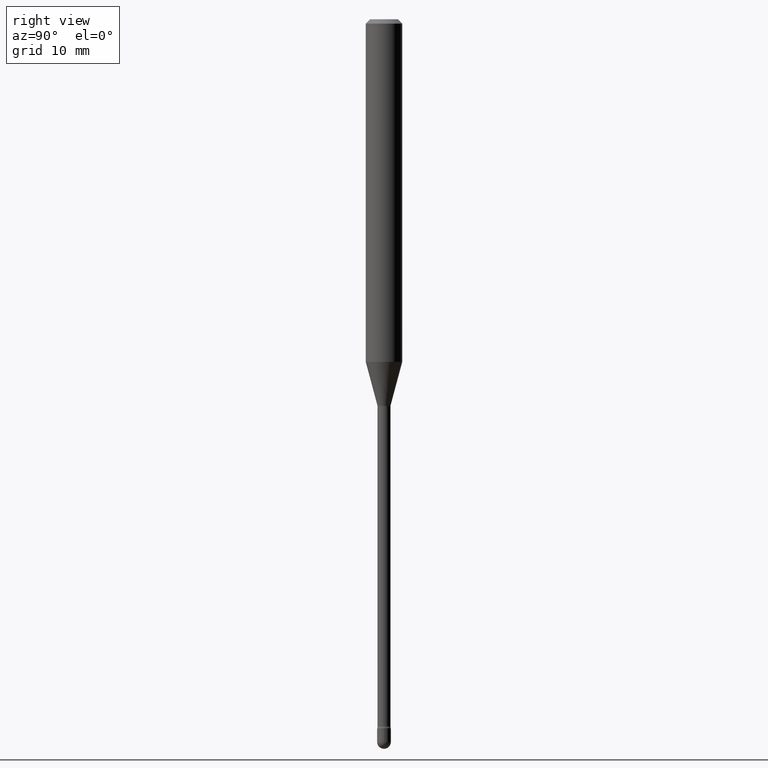
[diagram: clean part render]
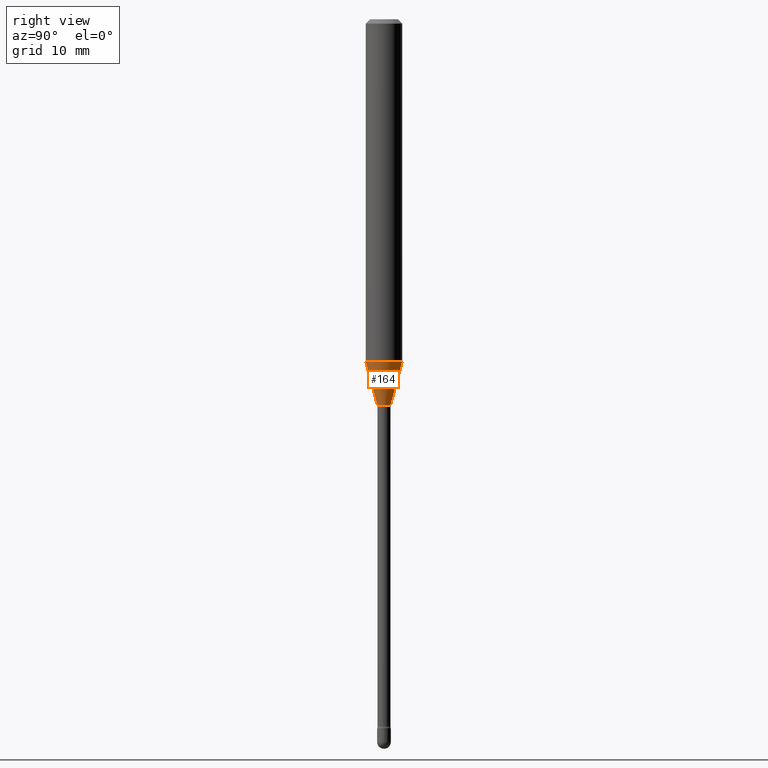
[diagram: same view with one face highlighted and labeled with its STEP entity id]
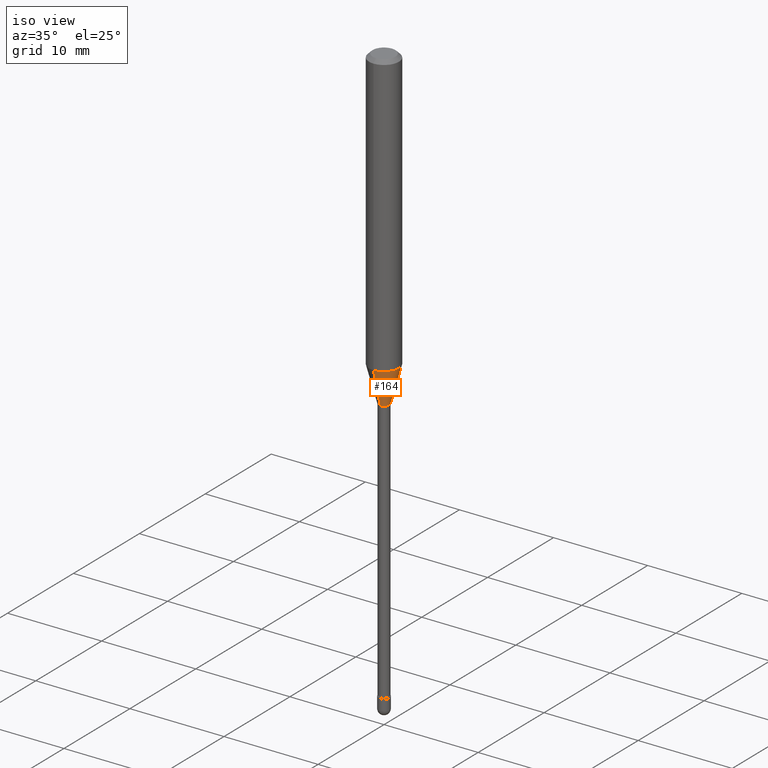
[diagram: same view with one face highlighted and labeled with its STEP entity id]
A machine part, right view. The second image highlights one B-rep face of the part: STEP entity #164.
A second angle (iso view) of the same face is appended — the face is thin or edge-on in the first view.
In plain terms, the highlighted conical surface has half-angle 15 deg.
Its self-contained STEP definition (entity closure, byte-faithful):
#5 = VERTEX_POINT ( 'NONE', #68 ) ;
#16 = CIRCLE ( 'NONE', #309, 0.06250000000000000000 ) ;
#31 = EDGE_CURVE ( 'NONE', #302, #5, #291, .T. ) ;
#45 = CARTESIAN_POINT ( 'NONE',  ( 3.235565564445505174E-29, -4.619575515422923355E-15, -1.323092501787273223 ) ) ;
#50 = VERTEX_POINT ( 'NONE', #242 ) ;
#62 = LINE ( 'NONE', #92, #320 ) ;
#68 = CARTESIAN_POINT ( 'NONE',  ( 4.440892098500910152E-16, 0.06249999999999587830, -1.174225147374218237 ) ) ;
#84 = ORIENTED_EDGE ( 'NONE', *, *, #457, .F. ) ;
#92 = CARTESIAN_POINT ( 'NONE',  ( -1.578925554262807327E-16, -0.02261111260566860820, -1.323092501787273223 ) ) ;
#111 = CARTESIAN_POINT ( 'NONE',  ( 2.871516879294367278E-29, -4.099805367407296517E-15, -1.174225147374218015 ) ) ;
#118 = FACE_OUTER_BOUND ( 'NONE', #408, .T. ) ;
#138 = CARTESIAN_POINT ( 'NONE',  ( -1.578925554262807327E-16, -0.02261111260566860820, -1.323092501787273223 ) ) ;
#164 = ADVANCED_FACE ( 'NONE', ( #118 ), #208, .T. ) ;
#165 = DIRECTION ( 'NONE',  ( -6.982962677686265922E-15, -1.000000000000000000, 0.000000000000000000 ) ) ;
#202 = EDGE_CURVE ( 'NONE', #399, #302, #547, .T. ) ;
#207 = DIRECTION ( 'NONE',  ( -6.982962677686265922E-15, -1.000000000000000000, 4.370956789862821150E-15 ) ) ;
#208 = CONICAL_SURFACE ( 'NONE', #419, 0.02261111260566398690, 0.2617993877991501295 ) ;
#211 = DIRECTION ( 'NONE',  ( -2.445456806742390166E-29, 3.491498522728124281E-15, 1.000000000000000000 ) ) ;
#242 = CARTESIAN_POINT ( 'NONE',  ( -4.364351673553631225E-16, -0.06250000000000412170, -1.174225147374217793 ) ) ;
#291 = LINE ( 'NONE', #548, #494 ) ;
#295 = DIRECTION ( 'NONE',  ( 1.839019923739599526E-15, 0.2588190451025248473, 0.9659258262890673130 ) ) ;
#302 = VERTEX_POINT ( 'NONE', #348 ) ;
#309 = AXIS2_PLACEMENT_3D ( 'NONE', #111, #211, #207 ) ;
#320 = VECTOR ( 'NONE', #368, 39.37007874015749564 ) ;
#348 = CARTESIAN_POINT ( 'NONE',  ( 3.023754139721027843E-16, 0.02261111260565936906, -1.323092501787273223 ) ) ;
#356 = ORIENTED_EDGE ( 'NONE', *, *, #202, .T. ) ;
#367 = ORIENTED_EDGE ( 'NONE', *, *, #31, .T. ) ;
#368 = DIRECTION ( 'NONE',  ( -1.807323732225328562E-15, -0.2588190451025179639, 0.9659258262890689783 ) ) ;
#387 = CARTESIAN_POINT ( 'NONE',  ( 3.235565564445505174E-29, -4.619575515422923355E-15, -1.323092501787273223 ) ) ;
#398 = DIRECTION ( 'NONE',  ( -2.445456806742390166E-29, 3.491498522728124281E-15, 1.000000000000000000 ) ) ;
#399 = VERTEX_POINT ( 'NONE', #138 ) ;
#408 = EDGE_LOOP ( 'NONE', ( #356, #367, #84, #536 ) ) ;
#410 = AXIS2_PLACEMENT_3D ( 'NONE', #387, #431, #563 ) ;
#419 = AXIS2_PLACEMENT_3D ( 'NONE', #45, #398, #165 ) ;
#431 = DIRECTION ( 'NONE',  ( -2.445456806742390166E-29, 3.491498522728124281E-15, 1.000000000000000000 ) ) ;
#440 = EDGE_CURVE ( 'NONE', #399, #50, #62, .T. ) ;
#457 = EDGE_CURVE ( 'NONE', #50, #5, #16, .T. ) ;
#494 = VECTOR ( 'NONE', #295, 39.37007874015747433 ) ;
#536 = ORIENTED_EDGE ( 'NONE', *, *, #440, .F. ) ;
#547 = CIRCLE ( 'NONE', #410, 0.02261111260566398690 ) ;
#548 = CARTESIAN_POINT ( 'NONE',  ( 1.606616180941141096E-16, 0.02261111260565936906, -1.323092501787273223 ) ) ;
#563 = DIRECTION ( 'NONE',  ( -6.982962677686265922E-15, -1.000000000000000000, 0.000000000000000000 ) ) ;